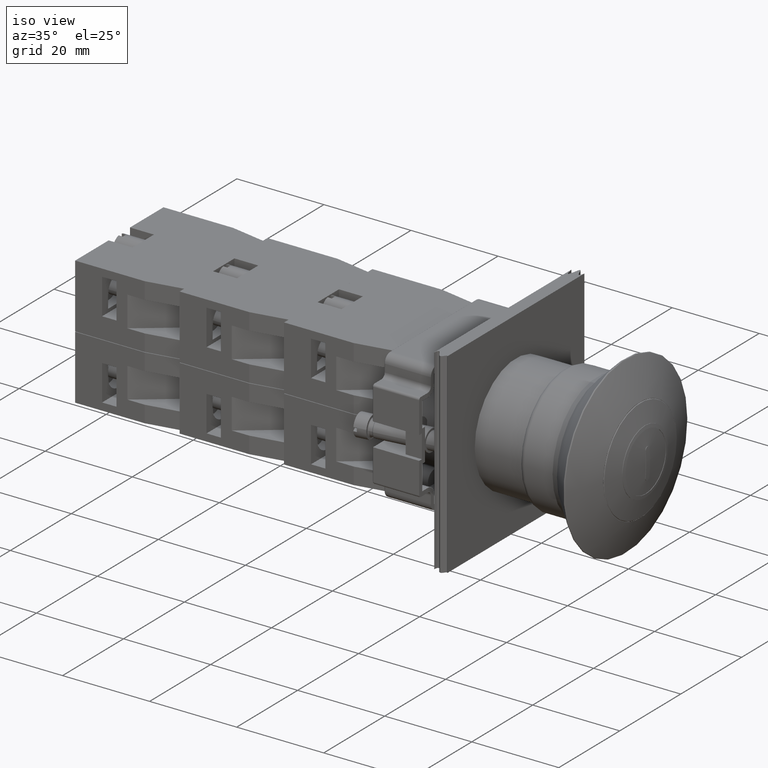
[diagram: clean part render]
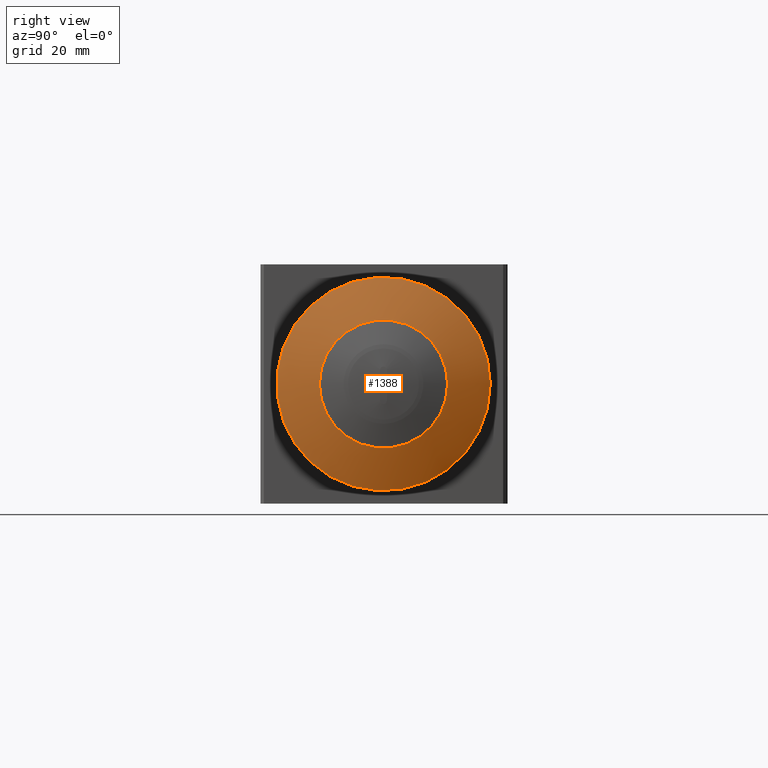
[diagram: tour spotlight — one face highlighted and labeled with its STEP entity id]
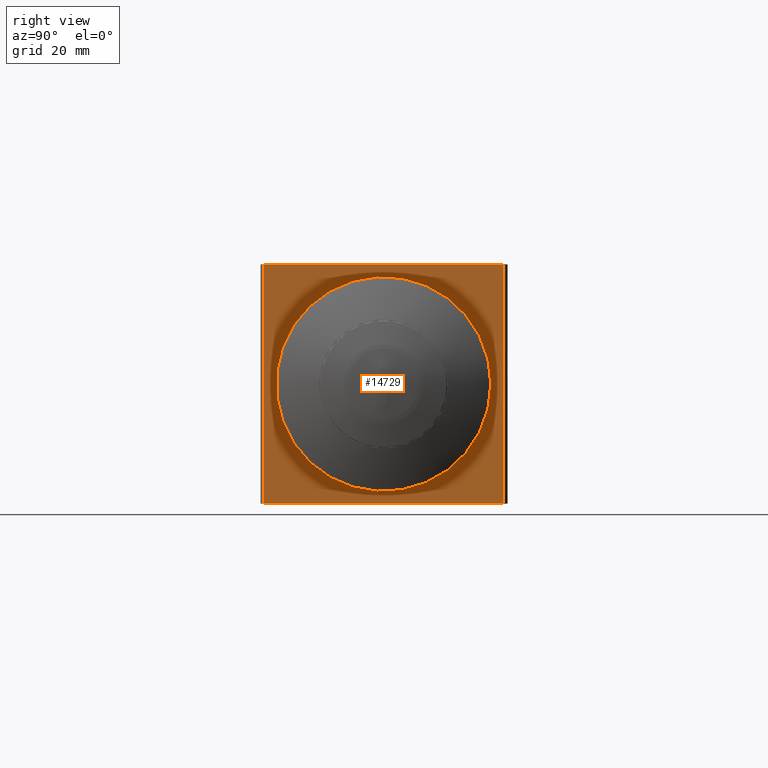
[diagram: tour spotlight — one face highlighted and labeled with its STEP entity id]
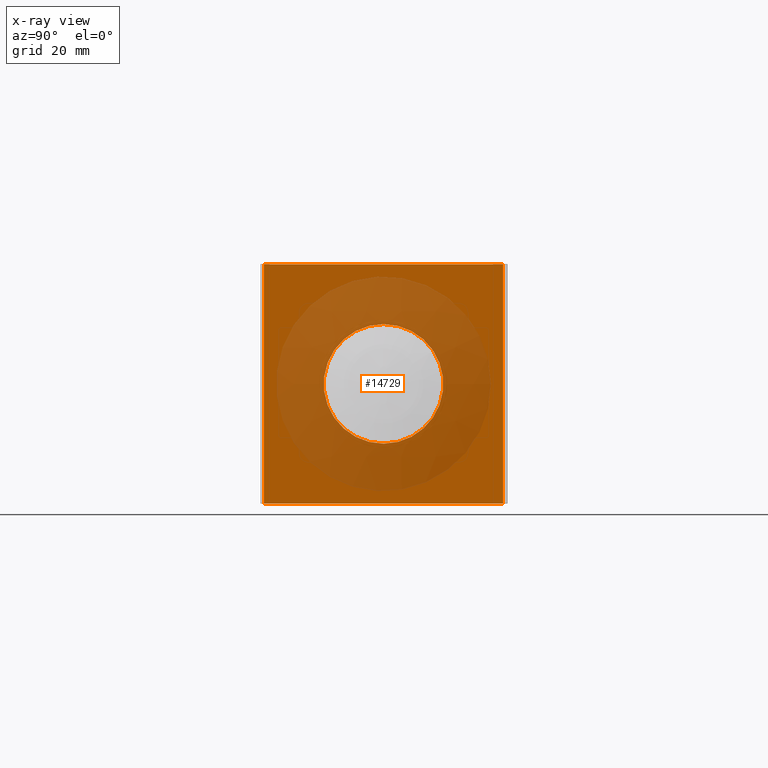
[diagram: x-ray of the same camera — body ghosted, this tour face saturated]
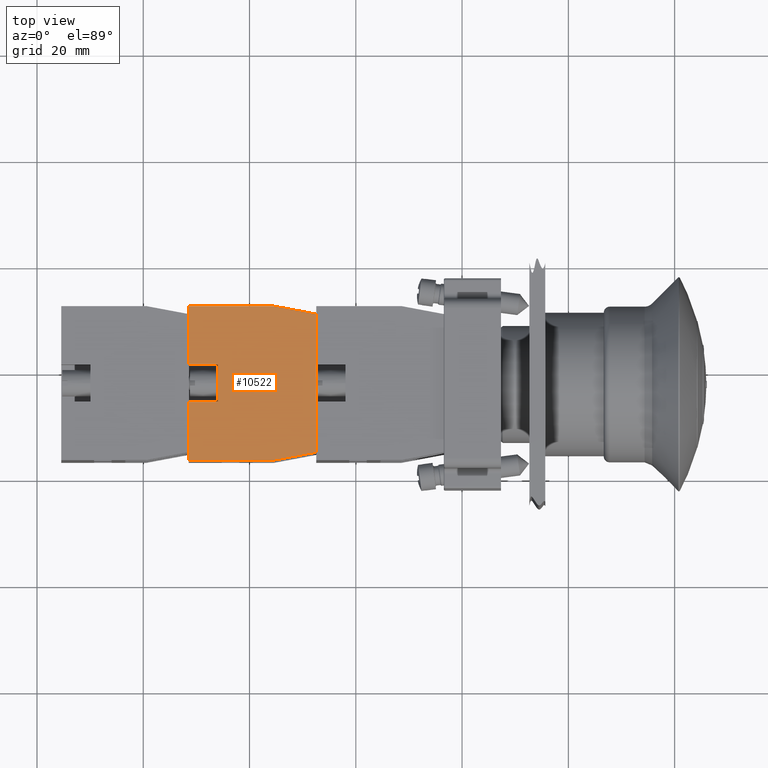
[diagram: tour spotlight — one face highlighted and labeled with its STEP entity id]
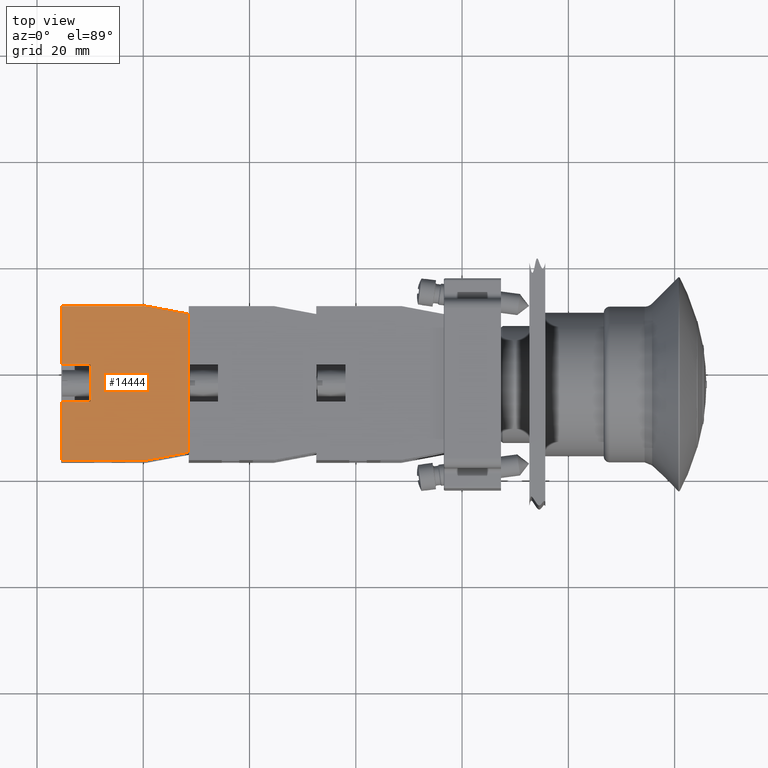
[diagram: tour spotlight — one face highlighted and labeled with its STEP entity id]
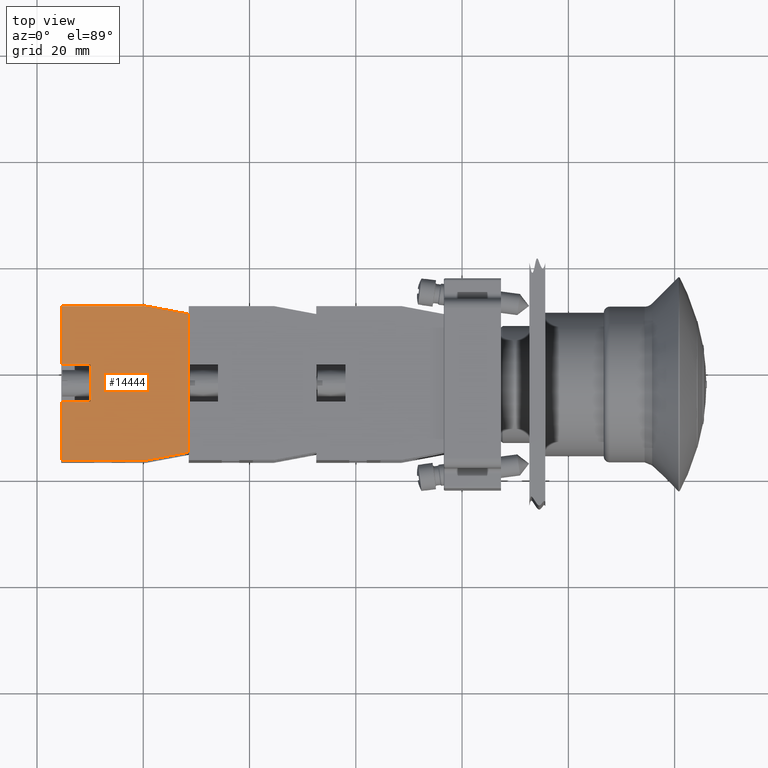
[diagram: tour spotlight — one face highlighted and labeled with its STEP entity id]
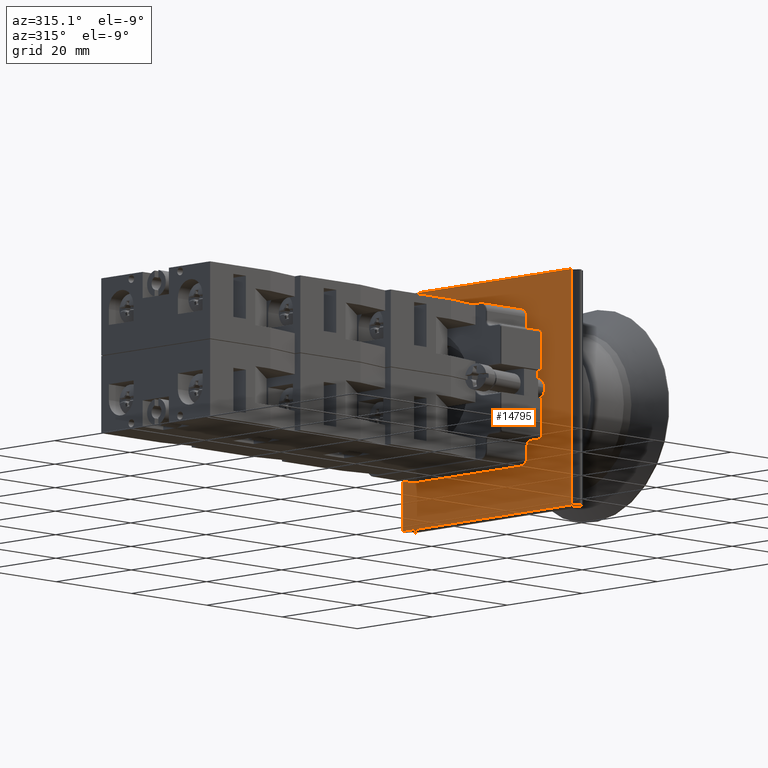
[diagram: tour spotlight — one face highlighted and labeled with its STEP entity id]
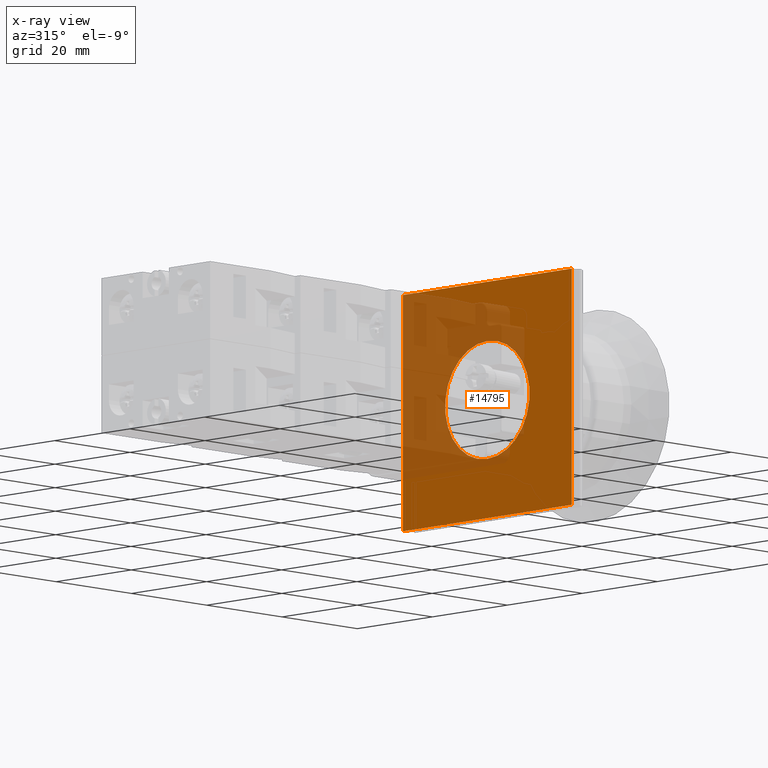
[diagram: x-ray of the same camera — body ghosted, this tour face saturated]
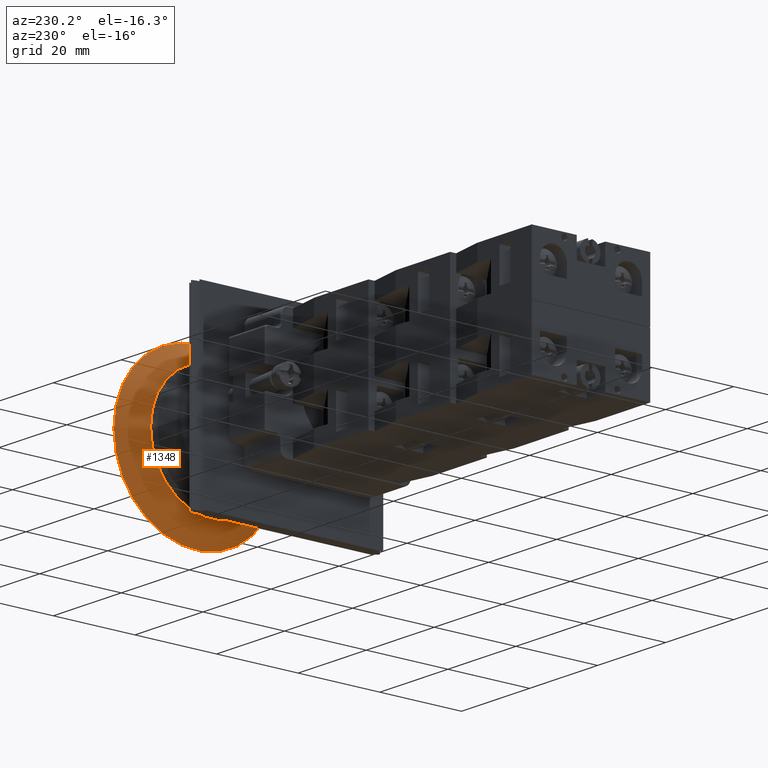
[diagram: tour spotlight — one face highlighted and labeled with its STEP entity id]
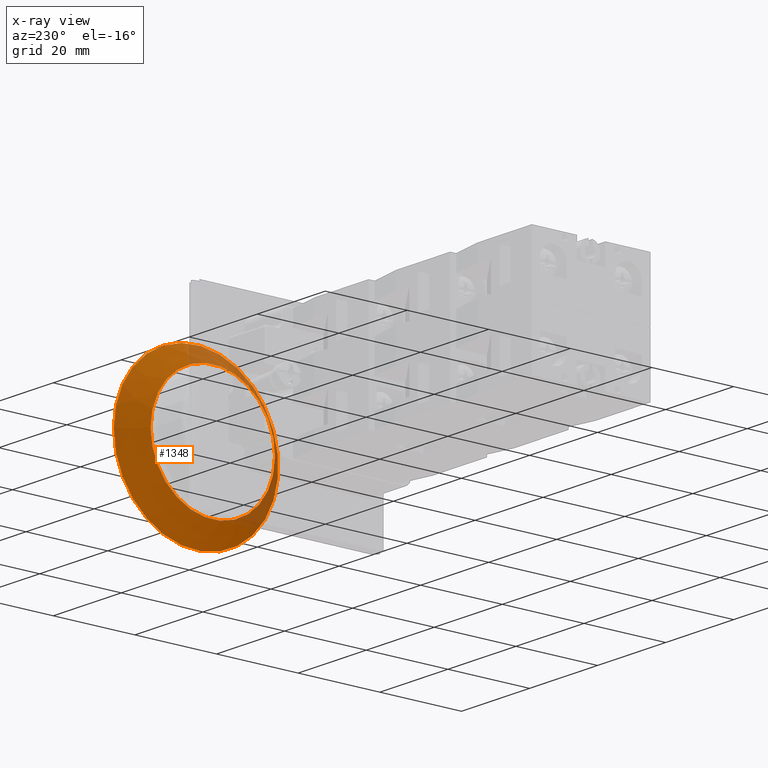
[diagram: x-ray of the same camera — body ghosted, this tour face saturated]
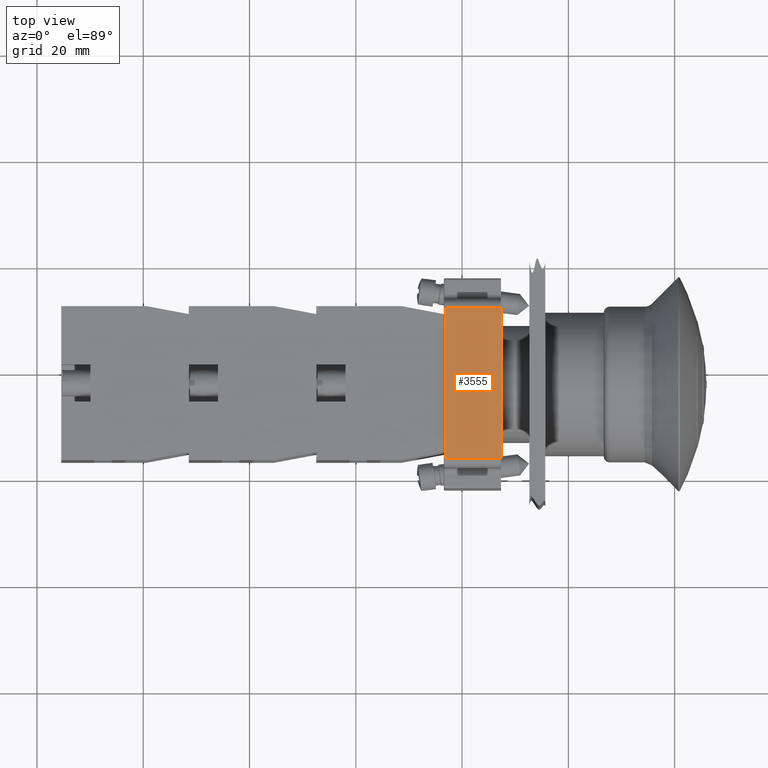
[diagram: tour spotlight — one face highlighted and labeled with its STEP entity id]
A machine part: a face-by-face anatomy tour. The part has 1221 B-rep faces; the first image is the clean iso view, then the 8 largest visible faces are spotlighted one at a time (largest first), each with its STEP entity span.

Face 1 — right view, entity #1388. In plain terms, the highlighted spherical surface has radius 43.5775 mm.
Definition (entity closure, byte-faithful):
#1354=CARTESIAN_POINT('',(40.979808710957514,17.892877328775732,0.0));
#1355=VERTEX_POINT('',#1354);
#1356=CARTESIAN_POINT('',(40.979808710957514,-2.200871066395350,0.0));
#1357=DIRECTION('',(1.0,1.504367E-013,0.0));
#1358=DIRECTION('',(-1.504367E-013,1.0,0.0));
#1359=AXIS2_PLACEMENT_3D('',#1356,#1357,#1358);
#1360=CIRCLE('',#1359,20.093748395171080);
#1361=EDGE_CURVE('',#1355,#1355,#1360,.T.);
#1369=CARTESIAN_POINT('',(2.311439613035351,-2.200871066395349,0.0));
#1370=DIRECTION('',(0.0,0.0,1.0));
#1371=DIRECTION('',(1.0,0.0,0.0));
#1372=AXIS2_PLACEMENT_3D('',#1369,#1370,#1371);
#1373=SPHERICAL_SURFACE('',#1372,43.577534272392938);
#1374=CARTESIAN_POINT('',(44.186979011821556,9.859008423976306,0.0));
#1375=VERTEX_POINT('',#1374);
#1376=CARTESIAN_POINT('',(44.186979011821563,-2.200871066395350,0.0));
#1377=DIRECTION('',(1.0,1.504367E-013,0.0));
#1378=DIRECTION('',(-1.504367E-013,1.0,0.0));
#1379=AXIS2_PLACEMENT_3D('',#1376,#1377,#1378);
#1380=CIRCLE('',#1379,12.059879490371655);
#1381=EDGE_CURVE('',#1375,#1375,#1380,.T.);
#1382=ORIENTED_EDGE('',*,*,#1381,.F.);
#1383=EDGE_LOOP('',(#1382));
#1384=FACE_OUTER_BOUND('',#1383,.T.);
#1385=ORIENTED_EDGE('',*,*,#1361,.T.);
#1386=EDGE_LOOP('',(#1385));
#1387=FACE_BOUND('',#1386,.T.);
#1388=ADVANCED_FACE('',(#1384,#1387),#1373,.T.);

Face 2 — right view, entity #14729. An x-ray twin of the same camera follows (body ghosted, this face saturated) — the face is partly hidden behind the body. In plain terms, the highlighted planar face has unit normal (1, 0, -0).
Definition (entity closure, byte-faithful):
#14634=CARTESIAN_POINT('',(-12.704183619849179,-5.225398273954291,11.250000000000000));
#14635=VERTEX_POINT('',#14634);
#14636=CARTESIAN_POINT('',(-12.704183619849180,-5.225398273954292,22.500000000000000));
#14637=DIRECTION('',(-1.0,0.0,0.0));
#14638=DIRECTION('',(0.0,0.0,1.0));
#14639=AXIS2_PLACEMENT_3D('',#14636,#14637,#14638);
#14640=CIRCLE('',#14639,11.250000000000000);
#14641=EDGE_CURVE('',#14635,#14635,#14640,.T.);
#14659=CARTESIAN_POINT('',(-12.704183619849180,17.274601726045709,45.0));
#14660=VERTEX_POINT('',#14659);
#14669=CARTESIAN_POINT('',(-12.704183619849180,17.274601726045709,0.0));
#14670=VERTEX_POINT('',#14669);
#14671=CARTESIAN_POINT('',(-12.704183619849180,17.274601726045709,0.0));
#14672=DIRECTION('',(0.0,0.0,1.0));
#14673=VECTOR('',#14672,45.0);
#14674=LINE('',#14671,#14673);
#14675=EDGE_CURVE('',#14670,#14660,#14674,.T.);
#14696=CARTESIAN_POINT('',(-12.704183619849180,17.274601726045709,0.0));
#14697=DIRECTION('',(1.0,0.0,0.0));
#14698=DIRECTION('',(0.0,0.0,-1.0));
#14699=AXIS2_PLACEMENT_3D('',#14696,#14697,#14698);
#14700=PLANE('',#14699);
#14701=CARTESIAN_POINT('',(-12.704183619849177,-27.725398273954291,45.0));
#14702=VERTEX_POINT('',#14701);
#14703=CARTESIAN_POINT('',(-12.704183619849180,17.274601726045709,45.0));
#14704=DIRECTION('',(0.0,-1.0,0.0));
#14705=VECTOR('',#14704,45.0);
#14706=LINE('',#14703,#14705);
#14707=EDGE_CURVE('',#14660,#14702,#14706,.T.);
#14708=ORIENTED_EDGE('',*,*,#14707,.T.);
#14709=CARTESIAN_POINT('',(-12.704183619849177,-27.725398273954291,0.0));
#14710=VERTEX_POINT('',#14709);
#14711=CARTESIAN_POINT('',(-12.704183619849177,-27.725398273954291,0.0));
#14712=DIRECTION('',(0.0,0.0,1.0));
#14713=VECTOR('',#14712,45.0);
#14714=LINE('',#14711,#14713);
#14715=EDGE_CURVE('',#14710,#14702,#14714,.T.);
#14716=ORIENTED_EDGE('',*,*,#14715,.F.);
#14717=CARTESIAN_POINT('',(-12.704183619849177,-27.725398273954291,0.0));
#14718=DIRECTION('',(0.0,1.0,0.0));
#14719=VECTOR('',#14718,45.0);
#14720=LINE('',#14717,#14719);
#14721=EDGE_CURVE('',#14710,#14670,#14720,.T.);
#14722=ORIENTED_EDGE('',*,*,#14721,.T.);
#14723=ORIENTED_EDGE('',*,*,#14675,.T.);
#14724=EDGE_LOOP('',(#14708,#14716,#14722,#14723));
#14725=FACE_OUTER_BOUND('',#14724,.T.);
#14726=ORIENTED_EDGE('',*,*,#14641,.T.);
#14727=EDGE_LOOP('',(#14726));
#14728=FACE_BOUND('',#14727,.T.);
#14729=ADVANCED_FACE('',(#14725,#14728),#14700,.T.);

Face 3 — top view, entity #10522. In plain terms, the highlighted planar face has unit normal (-0, -0, 1).
Definition (entity closure, byte-faithful):
#8825=CARTESIAN_POINT('',(-44.936741828918457,7.797073323279626,14.699999999999999));
#8826=VERTEX_POINT('',#8825);
#8833=CARTESIAN_POINT('',(-44.936741828918471,23.797073323279623,14.699999999999999));
#8834=VERTEX_POINT('',#8833);
#8835=CARTESIAN_POINT('',(-44.936741828918457,7.797073323279626,14.699999999999999));
#8836=DIRECTION('',(0.0,1.0,0.0));
#8837=VECTOR('',#8836,15.999999999999996);
#8838=LINE('',#8835,#8837);
#8839=EDGE_CURVE('',#8826,#8834,#8838,.T.);
#8906=CARTESIAN_POINT('',(-43.436741828918457,-0.202926676720380,14.699999999999999));
#8907=VERTEX_POINT('',#8906);
#8914=CARTESIAN_POINT('',(-43.436741828918457,-0.202926676720380,14.699999999999999));
#8915=DIRECTION('',(-0.184288535050185,0.982872186934322,0.0));
#8916=VECTOR('',#8915,8.139410298049860);
#8917=LINE('',#8914,#8916);
#8918=EDGE_CURVE('',#8907,#8826,#8917,.T.);
#9057=CARTESIAN_POINT('',(-17.436741828918457,-0.202926676720377,14.699999999999999));
#9058=VERTEX_POINT('',#9057);
#9065=CARTESIAN_POINT('',(-17.436741828918457,-0.202926676720377,14.699999999999999));
#9066=DIRECTION('',(-1.0,0.0,0.0));
#9067=VECTOR('',#9066,26.0);
#9068=LINE('',#9065,#9067);
#9069=EDGE_CURVE('',#9058,#8907,#9068,.T.);
#9150=CARTESIAN_POINT('',(-15.936741828918466,7.797073323279626,14.699999999999999));
#9151=VERTEX_POINT('',#9150);
#9158=CARTESIAN_POINT('',(-15.936741828918466,7.797073323279626,14.699999999999999));
#9159=DIRECTION('',(-0.184288535050184,-0.982872186934322,0.0));
#9160=VECTOR('',#9159,8.139410298049855);
#9161=LINE('',#9158,#9160);
#9162=EDGE_CURVE('',#9151,#9058,#9161,.T.);
#10257=CARTESIAN_POINT('',(-26.936741828918468,18.297073323279626,14.699999999999999));
#10258=VERTEX_POINT('',#10257);
#10267=CARTESIAN_POINT('',(-26.936741828918468,23.797073323279626,14.699999999999999));
#10268=VERTEX_POINT('',#10267);
#10269=CARTESIAN_POINT('',(-26.936741828918468,23.797073323279626,14.699999999999999));
#10270=DIRECTION('',(0.0,-1.0,0.0));
#10271=VECTOR('',#10270,5.500000000000000);
#10272=LINE('',#10269,#10271);
#10273=EDGE_CURVE('',#10268,#10258,#10272,.T.);
#10328=CARTESIAN_POINT('',(-33.936741828918464,18.297073323279619,14.699999999999999));
#10329=VERTEX_POINT('',#10328);
#10337=CARTESIAN_POINT('',(-33.936741828918464,23.797073323279623,14.699999999999999));
#10338=VERTEX_POINT('',#10337);
#10345=CARTESIAN_POINT('',(-33.936741828918464,18.297073323279619,14.699999999999999));
#10346=DIRECTION('',(0.0,1.0,0.0));
#10347=VECTOR('',#10346,5.500000000000004);
#10348=LINE('',#10345,#10347);
#10349=EDGE_CURVE('',#10329,#10338,#10348,.T.);
#10362=CARTESIAN_POINT('',(-26.936741828918468,18.297073323279626,14.699999999999999));
#10363=DIRECTION('',(-1.0,0.0,0.0));
#10364=VECTOR('',#10363,6.999999999999996);
#10365=LINE('',#10362,#10364);
#10366=EDGE_CURVE('',#10258,#10329,#10365,.T.);
#10382=CARTESIAN_POINT('',(-15.936741828918466,23.797073323279626,14.699999999999999));
#10383=VERTEX_POINT('',#10382);
#10384=CARTESIAN_POINT('',(-26.936741828918468,23.797073323279626,14.699999999999999));
#10385=DIRECTION('',(1.0,0.0,0.0));
#10386=VECTOR('',#10385,11.000000000000002);
#10387=LINE('',#10384,#10386);
#10388=EDGE_CURVE('',#10268,#10383,#10387,.T.);
#10405=CARTESIAN_POINT('',(-44.936741828918471,23.797073323279623,14.699999999999999));
#10406=DIRECTION('',(1.0,0.0,0.0));
#10407=VECTOR('',#10406,11.000000000000007);
#10408=LINE('',#10405,#10407);
#10409=EDGE_CURVE('',#8834,#10338,#10408,.T.);
#10453=CARTESIAN_POINT('',(-15.936741828918466,23.797073323279626,14.699999999999999));
#10454=DIRECTION('',(0.0,-1.0,0.0));
#10455=VECTOR('',#10454,16.0);
#10456=LINE('',#10453,#10455);
#10457=EDGE_CURVE('',#10383,#9151,#10456,.T.);
#10505=CARTESIAN_POINT('',(-30.436741828918457,12.124046801833057,14.699999999999999));
#10506=DIRECTION('',(0.0,0.0,1.0));
#10507=DIRECTION('',(1.0,0.0,0.0));
#10508=AXIS2_PLACEMENT_3D('',#10505,#10506,#10507);
#10509=PLANE('',#10508);
#10510=ORIENTED_EDGE('',*,*,#10349,.T.);
#10511=ORIENTED_EDGE('',*,*,#10409,.F.);
#10512=ORIENTED_EDGE('',*,*,#8839,.F.);
#10513=ORIENTED_EDGE('',*,*,#8918,.F.);
#10514=ORIENTED_EDGE('',*,*,#9069,.F.);
#10515=ORIENTED_EDGE('',*,*,#9162,.F.);
#10516=ORIENTED_EDGE('',*,*,#10457,.F.);
#10517=ORIENTED_EDGE('',*,*,#10388,.F.);
#10518=ORIENTED_EDGE('',*,*,#10273,.T.);
#10519=ORIENTED_EDGE('',*,*,#10366,.T.);
#10520=EDGE_LOOP('',(#10510,#10511,#10512,#10513,#10514,#10515,#10516,#10517,#10518,#10519));
#10521=FACE_OUTER_BOUND('',#10520,.T.);
#10522=ADVANCED_FACE('',(#10521),#10509,.T.);

Face 4 — top view, entity #14444. In plain terms, the highlighted planar face has unit normal (0, -0, 1).
Definition (entity closure, byte-faithful):
#12747=CARTESIAN_POINT('',(-44.936741828918457,7.797073323279626,14.699999999999999));
#12748=VERTEX_POINT('',#12747);
#12755=CARTESIAN_POINT('',(-44.936741828918471,23.797073323279623,14.699999999999999));
#12756=VERTEX_POINT('',#12755);
#12757=CARTESIAN_POINT('',(-44.936741828918457,7.797073323279626,14.699999999999999));
#12758=DIRECTION('',(0.0,1.0,0.0));
#12759=VECTOR('',#12758,15.999999999999996);
#12760=LINE('',#12757,#12759);
#12761=EDGE_CURVE('',#12748,#12756,#12760,.T.);
#12828=CARTESIAN_POINT('',(-43.436741828918457,-0.202926676720380,14.699999999999999));
#12829=VERTEX_POINT('',#12828);
#12836=CARTESIAN_POINT('',(-43.436741828918457,-0.202926676720380,14.699999999999999));
#12837=DIRECTION('',(-0.184288535050185,0.982872186934322,0.0));
#12838=VECTOR('',#12837,8.139410298049860);
#12839=LINE('',#12836,#12838);
#12840=EDGE_CURVE('',#12829,#12748,#12839,.T.);
#12979=CARTESIAN_POINT('',(-17.436741828918457,-0.202926676720377,14.699999999999999));
#12980=VERTEX_POINT('',#12979);
#12987=CARTESIAN_POINT('',(-17.436741828918457,-0.202926676720377,14.699999999999999));
#12988=DIRECTION('',(-1.0,0.0,0.0));
#12989=VECTOR('',#12988,26.0);
#12990=LINE('',#12987,#12989);
#12991=EDGE_CURVE('',#12980,#12829,#12990,.T.);
#13072=CARTESIAN_POINT('',(-15.936741828918466,7.797073323279626,14.699999999999999));
#13073=VERTEX_POINT('',#13072);
#13080=CARTESIAN_POINT('',(-15.936741828918466,7.797073323279626,14.699999999999999));
#13081=DIRECTION('',(-0.184288535050184,-0.982872186934322,0.0));
#13082=VECTOR('',#13081,8.139410298049855);
#13083=LINE('',#13080,#13082);
#13084=EDGE_CURVE('',#13073,#12980,#13083,.T.);
#14179=CARTESIAN_POINT('',(-26.936741828918468,18.297073323279626,14.699999999999999));
#14180=VERTEX_POINT('',#14179);
#14189=CARTESIAN_POINT('',(-26.936741828918468,23.797073323279626,14.699999999999999));
#14190=VERTEX_POINT('',#14189);
#14191=CARTESIAN_POINT('',(-26.936741828918468,23.797073323279626,14.699999999999999));
#14192=DIRECTION('',(0.0,-1.0,0.0));
#14193=VECTOR('',#14192,5.500000000000000);
#14194=LINE('',#14191,#14193);
#14195=EDGE_CURVE('',#14190,#14180,#14194,.T.);
#14250=CARTESIAN_POINT('',(-33.936741828918464,18.297073323279619,14.699999999999999));
#14251=VERTEX_POINT('',#14250);
#14259=CARTESIAN_POINT('',(-33.936741828918464,23.797073323279623,14.699999999999999));
#14260=VERTEX_POINT('',#14259);
#14267=CARTESIAN_POINT('',(-33.936741828918464,18.297073323279619,14.699999999999999));
#14268=DIRECTION('',(0.0,1.0,0.0));
#14269=VECTOR('',#14268,5.500000000000004);
#14270=LINE('',#14267,#14269);
#14271=EDGE_CURVE('',#14251,#14260,#14270,.T.);
#14284=CARTESIAN_POINT('',(-26.936741828918468,18.297073323279626,14.699999999999999));
#14285=DIRECTION('',(-1.0,0.0,0.0));
#14286=VECTOR('',#14285,6.999999999999996);
#14287=LINE('',#14284,#14286);
#14288=EDGE_CURVE('',#14180,#14251,#14287,.T.);
#14304=CARTESIAN_POINT('',(-15.936741828918466,23.797073323279626,14.699999999999999));
#14305=VERTEX_POINT('',#14304);
#14306=CARTESIAN_POINT('',(-26.936741828918468,23.797073323279626,14.699999999999999));
#14307=DIRECTION('',(1.0,0.0,0.0));
#14308=VECTOR('',#14307,11.000000000000002);
#14309=LINE('',#14306,#14308);
#14310=EDGE_CURVE('',#14190,#14305,#14309,.T.);
#14327=CARTESIAN_POINT('',(-44.936741828918471,23.797073323279623,14.699999999999999));
#14328=DIRECTION('',(1.0,0.0,0.0));
#14329=VECTOR('',#14328,11.000000000000007);
#14330=LINE('',#14327,#14329);
#14331=EDGE_CURVE('',#12756,#14260,#14330,.T.);
#14375=CARTESIAN_POINT('',(-15.936741828918466,23.797073323279626,14.699999999999999));
#14376=DIRECTION('',(0.0,-1.0,0.0));
#14377=VECTOR('',#14376,16.0);
#14378=LINE('',#14375,#14377);
#14379=EDGE_CURVE('',#14305,#13073,#14378,.T.);
#14427=CARTESIAN_POINT('',(-30.436741828918457,12.124046801833057,14.699999999999999));
#14428=DIRECTION('',(0.0,0.0,1.0));
#14429=DIRECTION('',(1.0,0.0,0.0));
#14430=AXIS2_PLACEMENT_3D('',#14427,#14428,#14429);
#14431=PLANE('',#14430);
#14432=ORIENTED_EDGE('',*,*,#14271,.T.);
#14433=ORIENTED_EDGE('',*,*,#14331,.F.);
#14434=ORIENTED_EDGE('',*,*,#12761,.F.);
#14435=ORIENTED_EDGE('',*,*,#12840,.F.);
#14436=ORIENTED_EDGE('',*,*,#12991,.F.);
#14437=ORIENTED_EDGE('',*,*,#13084,.F.);
#14438=ORIENTED_EDGE('',*,*,#14379,.F.);
#14439=ORIENTED_EDGE('',*,*,#14310,.F.);
#14440=ORIENTED_EDGE('',*,*,#14195,.T.);
#14441=ORIENTED_EDGE('',*,*,#14288,.T.);
#14442=EDGE_LOOP('',(#14432,#14433,#14434,#14435,#14436,#14437,#14438,#14439,#14440,#14441));
#14443=FACE_OUTER_BOUND('',#14442,.T.);
#14444=ADVANCED_FACE('',(#14443),#14431,.T.);

Face 5 — top view, entity #14444. In plain terms, the highlighted planar face has unit normal (-0, -0, 1).
Definition (entity closure, byte-faithful):
#12747=CARTESIAN_POINT('',(-44.936741828918457,7.797073323279626,14.699999999999999));
#12748=VERTEX_POINT('',#12747);
#12755=CARTESIAN_POINT('',(-44.936741828918471,23.797073323279623,14.699999999999999));
#12756=VERTEX_POINT('',#12755);
#12757=CARTESIAN_POINT('',(-44.936741828918457,7.797073323279626,14.699999999999999));
#12758=DIRECTION('',(0.0,1.0,0.0));
#12759=VECTOR('',#12758,15.999999999999996);
#12760=LINE('',#12757,#12759);
#12761=EDGE_CURVE('',#12748,#12756,#12760,.T.);
#12828=CARTESIAN_POINT('',(-43.436741828918457,-0.202926676720380,14.699999999999999));
#12829=VERTEX_POINT('',#12828);
#12836=CARTESIAN_POINT('',(-43.436741828918457,-0.202926676720380,14.699999999999999));
#12837=DIRECTION('',(-0.184288535050185,0.982872186934322,0.0));
#12838=VECTOR('',#12837,8.139410298049860);
#12839=LINE('',#12836,#12838);
#12840=EDGE_CURVE('',#12829,#12748,#12839,.T.);
#12979=CARTESIAN_POINT('',(-17.436741828918457,-0.202926676720377,14.699999999999999));
#12980=VERTEX_POINT('',#12979);
#12987=CARTESIAN_POINT('',(-17.436741828918457,-0.202926676720377,14.699999999999999));
#12988=DIRECTION('',(-1.0,0.0,0.0));
#12989=VECTOR('',#12988,26.0);
#12990=LINE('',#12987,#12989);
#12991=EDGE_CURVE('',#12980,#12829,#12990,.T.);
#13072=CARTESIAN_POINT('',(-15.936741828918466,7.797073323279626,14.699999999999999));
#13073=VERTEX_POINT('',#13072);
#13080=CARTESIAN_POINT('',(-15.936741828918466,7.797073323279626,14.699999999999999));
#13081=DIRECTION('',(-0.184288535050184,-0.982872186934322,0.0));
#13082=VECTOR('',#13081,8.139410298049855);
#13083=LINE('',#13080,#13082);
#13084=EDGE_CURVE('',#13073,#12980,#13083,.T.);
#14179=CARTESIAN_POINT('',(-26.936741828918468,18.297073323279626,14.699999999999999));
#14180=VERTEX_POINT('',#14179);
#14189=CARTESIAN_POINT('',(-26.936741828918468,23.797073323279626,14.699999999999999));
#14190=VERTEX_POINT('',#14189);
#14191=CARTESIAN_POINT('',(-26.936741828918468,23.797073323279626,14.699999999999999));
#14192=DIRECTION('',(0.0,-1.0,0.0));
#14193=VECTOR('',#14192,5.500000000000000);
#14194=LINE('',#14191,#14193);
#14195=EDGE_CURVE('',#14190,#14180,#14194,.T.);
#14250=CARTESIAN_POINT('',(-33.936741828918464,18.297073323279619,14.699999999999999));
#14251=VERTEX_POINT('',#14250);
#14259=CARTESIAN_POINT('',(-33.936741828918464,23.797073323279623,14.699999999999999));
#14260=VERTEX_POINT('',#14259);
#14267=CARTESIAN_POINT('',(-33.936741828918464,18.297073323279619,14.699999999999999));
#14268=DIRECTION('',(0.0,1.0,0.0));
#14269=VECTOR('',#14268,5.500000000000004);
#14270=LINE('',#14267,#14269);
#14271=EDGE_CURVE('',#14251,#14260,#14270,.T.);
#14284=CARTESIAN_POINT('',(-26.936741828918468,18.297073323279626,14.699999999999999));
#14285=DIRECTION('',(-1.0,0.0,0.0));
#14286=VECTOR('',#14285,6.999999999999996);
#14287=LINE('',#14284,#14286);
#14288=EDGE_CURVE('',#14180,#14251,#14287,.T.);
#14304=CARTESIAN_POINT('',(-15.936741828918466,23.797073323279626,14.699999999999999));
#14305=VERTEX_POINT('',#14304);
#14306=CARTESIAN_POINT('',(-26.936741828918468,23.797073323279626,14.699999999999999));
#14307=DIRECTION('',(1.0,0.0,0.0));
#14308=VECTOR('',#14307,11.000000000000002);
#14309=LINE('',#14306,#14308);
#14310=EDGE_CURVE('',#14190,#14305,#14309,.T.);
#14327=CARTESIAN_POINT('',(-44.936741828918471,23.797073323279623,14.699999999999999));
#14328=DIRECTION('',(1.0,0.0,0.0));
#14329=VECTOR('',#14328,11.000000000000007);
#14330=LINE('',#14327,#14329);
#14331=EDGE_CURVE('',#12756,#14260,#14330,.T.);
#14375=CARTESIAN_POINT('',(-15.936741828918466,23.797073323279626,14.699999999999999));
#14376=DIRECTION('',(0.0,-1.0,0.0));
#14377=VECTOR('',#14376,16.0);
#14378=LINE('',#14375,#14377);
#14379=EDGE_CURVE('',#14305,#13073,#14378,.T.);
#14427=CARTESIAN_POINT('',(-30.436741828918457,12.124046801833057,14.699999999999999));
#14428=DIRECTION('',(0.0,0.0,1.0));
#14429=DIRECTION('',(1.0,0.0,0.0));
#14430=AXIS2_PLACEMENT_3D('',#14427,#14428,#14429);
#14431=PLANE('',#14430);
#14432=ORIENTED_EDGE('',*,*,#14271,.T.);
#14433=ORIENTED_EDGE('',*,*,#14331,.F.);
#14434=ORIENTED_EDGE('',*,*,#12761,.F.);
#14435=ORIENTED_EDGE('',*,*,#12840,.F.);
#14436=ORIENTED_EDGE('',*,*,#12991,.F.);
#14437=ORIENTED_EDGE('',*,*,#13084,.F.);
#14438=ORIENTED_EDGE('',*,*,#14379,.F.);
#14439=ORIENTED_EDGE('',*,*,#14310,.F.);
#14440=ORIENTED_EDGE('',*,*,#14195,.T.);
#14441=ORIENTED_EDGE('',*,*,#14288,.T.);
#14442=EDGE_LOOP('',(#14432,#14433,#14434,#14435,#14436,#14437,#14438,#14439,#14440,#14441));
#14443=FACE_OUTER_BOUND('',#14442,.T.);
#14444=ADVANCED_FACE('',(#14443),#14431,.T.);

Face 6 — auxiliary view, entity #14795. An x-ray twin of the same camera follows (body ghosted, this face saturated) — the face is partly hidden behind the body. In plain terms, the highlighted planar face has unit normal (-1, 0, 0).
Definition (entity closure, byte-faithful):
#14623=CARTESIAN_POINT('',(-15.704183619849179,-5.225398273954291,11.250000000000000));
#14624=VERTEX_POINT('',#14623);
#14625=CARTESIAN_POINT('',(-15.704183619849179,-5.225398273954292,22.500000000000000));
#14626=DIRECTION('',(1.0,0.0,0.0));
#14627=DIRECTION('',(0.0,0.0,1.0));
#14628=AXIS2_PLACEMENT_3D('',#14625,#14626,#14627);
#14629=CIRCLE('',#14628,11.250000000000000);
#14630=EDGE_CURVE('',#14624,#14624,#14629,.T.);
#14657=CARTESIAN_POINT('',(-15.704183619849184,17.274601726045709,45.0));
#14658=VERTEX_POINT('',#14657);
#14677=CARTESIAN_POINT('',(-15.704183619849184,17.274601726045709,0.0));
#14678=VERTEX_POINT('',#14677);
#14687=CARTESIAN_POINT('',(-15.704183619849184,17.274601726045709,0.0));
#14688=DIRECTION('',(0.0,0.0,1.0));
#14689=VECTOR('',#14688,45.0);
#14690=LINE('',#14687,#14689);
#14691=EDGE_CURVE('',#14678,#14658,#14690,.T.);
#14741=CARTESIAN_POINT('',(-15.704183619849179,-27.725398273954291,45.0));
#14742=VERTEX_POINT('',#14741);
#14751=CARTESIAN_POINT('',(-15.704183619849179,-27.725398273954291,0.0));
#14752=VERTEX_POINT('',#14751);
#14753=CARTESIAN_POINT('',(-15.704183619849179,-27.725398273954291,0.0));
#14754=DIRECTION('',(0.0,0.0,1.0));
#14755=VECTOR('',#14754,45.0);
#14756=LINE('',#14753,#14755);
#14757=EDGE_CURVE('',#14752,#14742,#14756,.T.);
#14771=CARTESIAN_POINT('',(-15.704183619849179,-27.725398273954291,0.0));
#14772=DIRECTION('',(-1.0,0.0,0.0));
#14773=DIRECTION('',(0.0,0.0,1.0));
#14774=AXIS2_PLACEMENT_3D('',#14771,#14772,#14773);
#14775=PLANE('',#14774);
#14776=CARTESIAN_POINT('',(-15.704183619849179,-27.725398273954291,45.0));
#14777=DIRECTION('',(0.0,1.0,0.0));
#14778=VECTOR('',#14777,45.0);
#14779=LINE('',#14776,#14778);
#14780=EDGE_CURVE('',#14742,#14658,#14779,.T.);
#14781=ORIENTED_EDGE('',*,*,#14780,.T.);
#14782=ORIENTED_EDGE('',*,*,#14691,.F.);
#14783=CARTESIAN_POINT('',(-15.704183619849184,17.274601726045709,0.0));
#14784=DIRECTION('',(0.0,-1.0,0.0));
#14785=VECTOR('',#14784,45.0);
#14786=LINE('',#14783,#14785);
#14787=EDGE_CURVE('',#14678,#14752,#14786,.T.);
#14788=ORIENTED_EDGE('',*,*,#14787,.T.);
#14789=ORIENTED_EDGE('',*,*,#14757,.T.);
#14790=EDGE_LOOP('',(#14781,#14782,#14788,#14789));
#14791=FACE_OUTER_BOUND('',#14790,.T.);
#14792=ORIENTED_EDGE('',*,*,#14630,.T.);
#14793=EDGE_LOOP('',(#14792));
#14794=FACE_BOUND('',#14793,.T.);
#14795=ADVANCED_FACE('',(#14791,#14794),#14775,.T.);

Face 7 — auxiliary view, entity #1348. An x-ray twin of the same camera follows (body ghosted, this face saturated) — the face is partly hidden behind the body. In plain terms, the highlighted conical surface has half-angle 45 deg.
Definition (entity closure, byte-faithful):
#1314=CARTESIAN_POINT('',(35.756085409183882,13.034915371231561,0.0));
#1315=VERTEX_POINT('',#1314);
#1316=CARTESIAN_POINT('',(35.756085409183882,-2.200871066395349,0.0));
#1317=DIRECTION('',(1.0,1.504367E-013,0.0));
#1318=DIRECTION('',(-1.504367E-013,1.0,0.0));
#1319=AXIS2_PLACEMENT_3D('',#1316,#1317,#1318);
#1320=CIRCLE('',#1319,15.235786437626910);
#1321=EDGE_CURVE('',#1315,#1315,#1320,.T.);
#1329=CARTESIAN_POINT('',(38.208902868489076,-2.200871066395350,0.0));
#1330=DIRECTION('',(1.0,-3.885962E-018,0.0));
#1331=DIRECTION('',(-1.504367E-013,1.0,0.0));
#1332=AXIS2_PLACEMENT_3D('',#1329,#1330,#1331);
#1333=CONICAL_SURFACE('',#1332,17.688603896932111,45.000000000000078);
#1334=CARTESIAN_POINT('',(40.661720327794271,17.940550289841962,0.0));
#1335=VERTEX_POINT('',#1334);
#1336=CARTESIAN_POINT('',(40.661720327794271,-2.200871066395350,0.0));
#1337=DIRECTION('',(1.0,1.504367E-013,0.0));
#1338=DIRECTION('',(-1.504367E-013,1.0,0.0));
#1339=AXIS2_PLACEMENT_3D('',#1336,#1337,#1338);
#1340=CIRCLE('',#1339,20.141421356237316);
#1341=EDGE_CURVE('',#1335,#1335,#1340,.T.);
#1342=ORIENTED_EDGE('',*,*,#1341,.F.);
#1343=EDGE_LOOP('',(#1342));
#1344=FACE_OUTER_BOUND('',#1343,.T.);
#1345=ORIENTED_EDGE('',*,*,#1321,.T.);
#1346=EDGE_LOOP('',(#1345));
#1347=FACE_BOUND('',#1346,.T.);
#1348=ADVANCED_FACE('',(#1344,#1347),#1333,.T.);

Face 8 — top view, entity #3555. In plain terms, the highlighted planar face has unit normal (-0, -0, 1).
Definition (entity closure, byte-faithful):
#1950=CARTESIAN_POINT('',(14.967219691723894,-4.857135171842447,10.500000000000000));
#1951=VERTEX_POINT('',#1950);
#1969=CARTESIAN_POINT('',(-13.332780308276105,-4.857135171842446,10.500000000000000));
#1970=VERTEX_POINT('',#1969);
#1978=CARTESIAN_POINT('',(-13.332780308276105,-4.857135171842446,10.500000000000000));
#1979=DIRECTION('',(1.0,0.0,0.0));
#1980=VECTOR('',#1979,28.299999999999997);
#1981=LINE('',#1978,#1980);
#1982=EDGE_CURVE('',#1970,#1951,#1981,.T.);
#3513=CARTESIAN_POINT('',(14.967219691723894,-4.857135171842447,0.0));
#3514=VERTEX_POINT('',#3513);
#3515=CARTESIAN_POINT('',(14.967219691723894,-4.857135171842447,0.0));
#3516=DIRECTION('',(0.0,0.0,1.0));
#3517=VECTOR('',#3516,10.500000000000000);
#3518=LINE('',#3515,#3517);
#3519=EDGE_CURVE('',#3514,#1951,#3518,.T.);
#3532=CARTESIAN_POINT('',(14.967219691723894,-4.857135171842447,0.0));
#3533=DIRECTION('',(0.0,-1.0,0.0));
#3534=DIRECTION('',(0.0,0.0,-1.0));
#3535=AXIS2_PLACEMENT_3D('',#3532,#3533,#3534);
#3536=PLANE('',#3535);
#3537=ORIENTED_EDGE('',*,*,#1982,.F.);
#3538=CARTESIAN_POINT('',(-13.332780308276105,-4.857135171842446,0.0));
#3539=VERTEX_POINT('',#3538);
#3540=CARTESIAN_POINT('',(-13.332780308276105,-4.857135171842446,0.0));
#3541=DIRECTION('',(0.0,0.0,1.0));
#3542=VECTOR('',#3541,10.500000000000000);
#3543=LINE('',#3540,#3542);
#3544=EDGE_CURVE('',#3539,#1970,#3543,.T.);
#3545=ORIENTED_EDGE('',*,*,#3544,.F.);
#3546=CARTESIAN_POINT('',(-13.332780308276105,-4.857135171842446,0.0));
#3547=DIRECTION('',(1.0,0.0,0.0));
#3548=VECTOR('',#3547,28.299999999999997);
#3549=LINE('',#3546,#3548);
#3550=EDGE_CURVE('',#3539,#3514,#3549,.T.);
#3551=ORIENTED_EDGE('',*,*,#3550,.T.);
#3552=ORIENTED_EDGE('',*,*,#3519,.T.);
#3553=EDGE_LOOP('',(#3537,#3545,#3551,#3552));
#3554=FACE_OUTER_BOUND('',#3553,.T.);
#3555=ADVANCED_FACE('',(#3554),#3536,.T.);